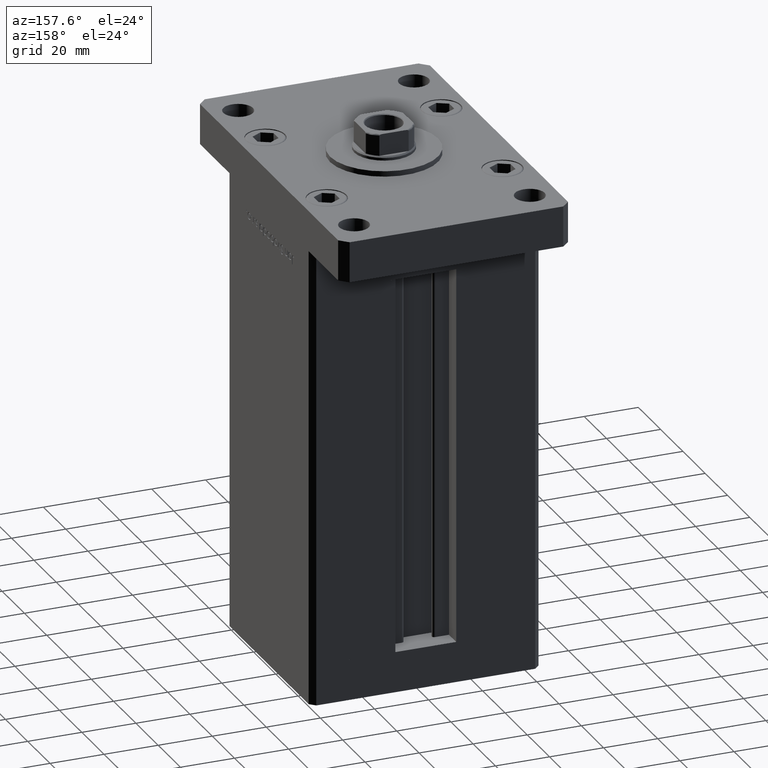
[diagram: clean part render]
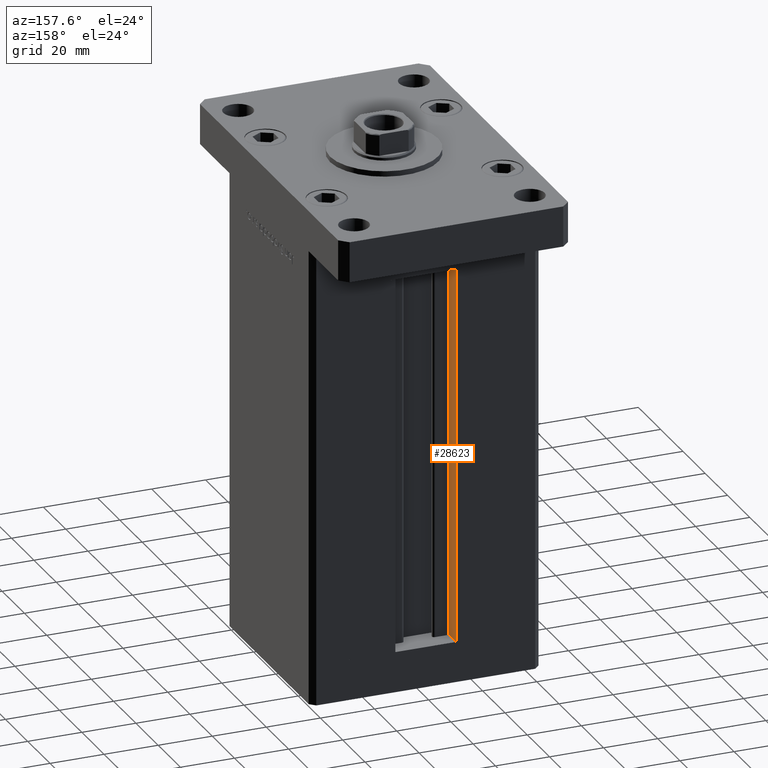
[diagram: same view with one face highlighted and labeled with its STEP entity id]
A machine part, auxiliary view. The second image highlights one B-rep face of the part: STEP entity #28623.
In plain terms, the highlighted planar face has unit normal (-1, 0, 0).
Its self-contained STEP definition (entity closure, byte-faithful):
#4706 = DIRECTION ( 'NONE',  ( 0.000000000000000000, 0.000000000000000000, 1.000000000000000000 ) ) ;
#5191 = CARTESIAN_POINT ( 'NONE',  ( -11.25000000000000000, 30.99999999999999289, 0.000000000000000000 ) ) ;
#5246 = DIRECTION ( 'NONE',  ( -1.000000000000000000, 0.000000000000000000, 0.000000000000000000 ) ) ;
#6278 = AXIS2_PLACEMENT_3D ( 'NONE', #45702, #5246, #4706 ) ;
#7476 = CARTESIAN_POINT ( 'NONE',  ( -11.25000000000000000, 37.50000000000000000, 0.000000000000000000 ) ) ;
#9035 = FACE_OUTER_BOUND ( 'NONE', #44165, .T. ) ;
#9506 = VECTOR ( 'NONE', #10555, 1000.000000000000000 ) ;
#9767 = CARTESIAN_POINT ( 'NONE',  ( -11.25000000000000000, 30.99999999999999289, 0.000000000000000000 ) ) ;
#10555 = DIRECTION ( 'NONE',  ( 0.000000000000000000, 1.000000000000000000, 0.000000000000000000 ) ) ;
#12143 = DIRECTION ( 'NONE',  ( -0.000000000000000000, -1.000000000000000000, -0.000000000000000000 ) ) ;
#15442 = LINE ( 'NONE', #51525, #9506 ) ;
#15675 = EDGE_CURVE ( 'NONE', #33382, #47086, #51035, .T. ) ;
#16022 = EDGE_CURVE ( 'NONE', #52022, #21702, #47106, .T. ) ;
#20022 = LINE ( 'NONE', #28959, #24940 ) ;
#21101 = EDGE_CURVE ( 'NONE', #47086, #21702, #15442, .T. ) ;
#21702 = VERTEX_POINT ( 'NONE', #38396 ) ;
#22074 = PLANE ( 'NONE',  #6278 ) ;
#23320 = ORIENTED_EDGE ( 'NONE', *, *, #21101, .F. ) ;
#24940 = VECTOR ( 'NONE', #12143, 1000.000000000000000 ) ;
#26503 = CARTESIAN_POINT ( 'NONE',  ( -11.25000000000000000, 37.50000000000000000, 0.000000000000000000 ) ) ;
#28623 = ADVANCED_FACE ( 'NONE', ( #9035 ), #22074, .F. ) ;
#28959 = CARTESIAN_POINT ( 'NONE',  ( -11.25000000000000000, 30.99999999999999289, 0.000000000000000000 ) ) ;
#33118 = ORIENTED_EDGE ( 'NONE', *, *, #51620, .F. ) ;
#33382 = VERTEX_POINT ( 'NONE', #9767 ) ;
#34160 = CARTESIAN_POINT ( 'NONE',  ( -11.25000000000000000, 30.99999999999999289, 139.5000000000000000 ) ) ;
#38077 = ORIENTED_EDGE ( 'NONE', *, *, #16022, .T. ) ;
#38276 = DIRECTION ( 'NONE',  ( -0.000000000000000000, -0.000000000000000000, 1.000000000000000000 ) ) ;
#38396 = CARTESIAN_POINT ( 'NONE',  ( -11.25000000000000000, 37.50000000000000000, 139.5000000000000000 ) ) ;
#39568 = ORIENTED_EDGE ( 'NONE', *, *, #15675, .F. ) ;
#43047 = DIRECTION ( 'NONE',  ( -0.000000000000000000, -0.000000000000000000, 1.000000000000000000 ) ) ;
#44165 = EDGE_LOOP ( 'NONE', ( #39568, #33118, #38077, #23320 ) ) ;
#45702 = CARTESIAN_POINT ( 'NONE',  ( -11.25000000000000000, 30.99999999999999289, 0.000000000000000000 ) ) ;
#47086 = VERTEX_POINT ( 'NONE', #34160 ) ;
#47106 = LINE ( 'NONE', #26503, #48416 ) ;
#48416 = VECTOR ( 'NONE', #43047, 1000.000000000000000 ) ;
#51035 = LINE ( 'NONE', #5191, #52699 ) ;
#51525 = CARTESIAN_POINT ( 'NONE',  ( -11.25000000000000000, 0.000000000000000000, 139.5000000000000000 ) ) ;
#51620 = EDGE_CURVE ( 'NONE', #52022, #33382, #20022, .T. ) ;
#52022 = VERTEX_POINT ( 'NONE', #7476 ) ;
#52699 = VECTOR ( 'NONE', #38276, 1000.000000000000000 ) ;